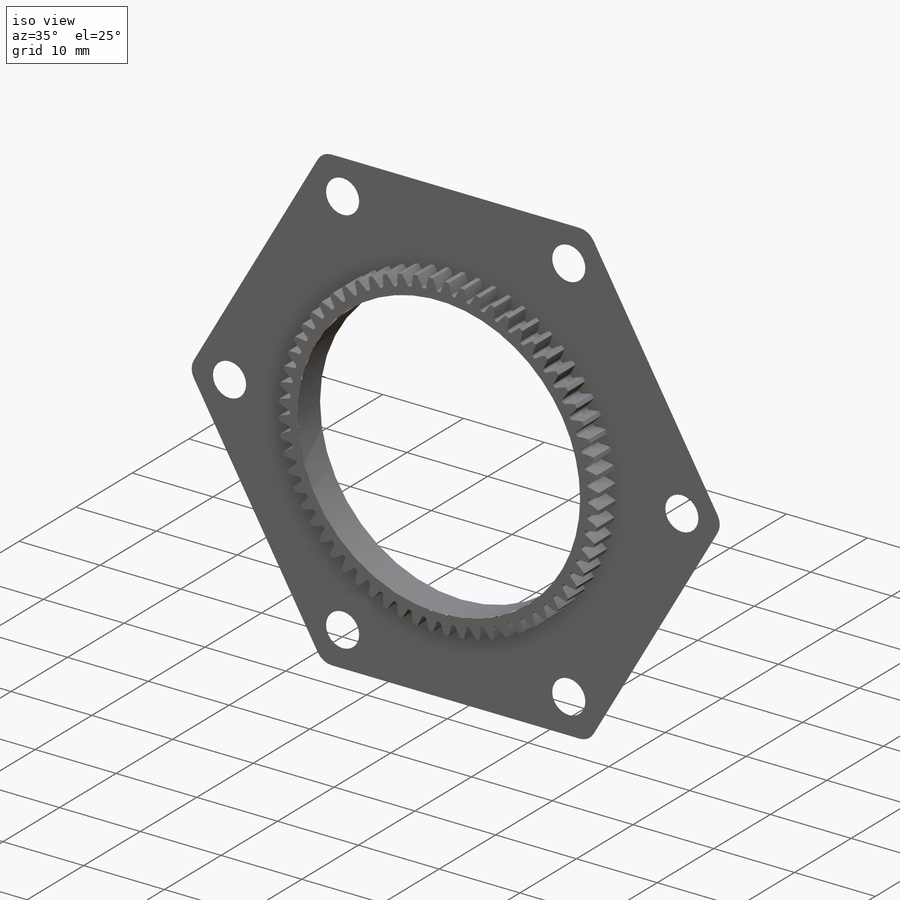
[diagram: iso view]
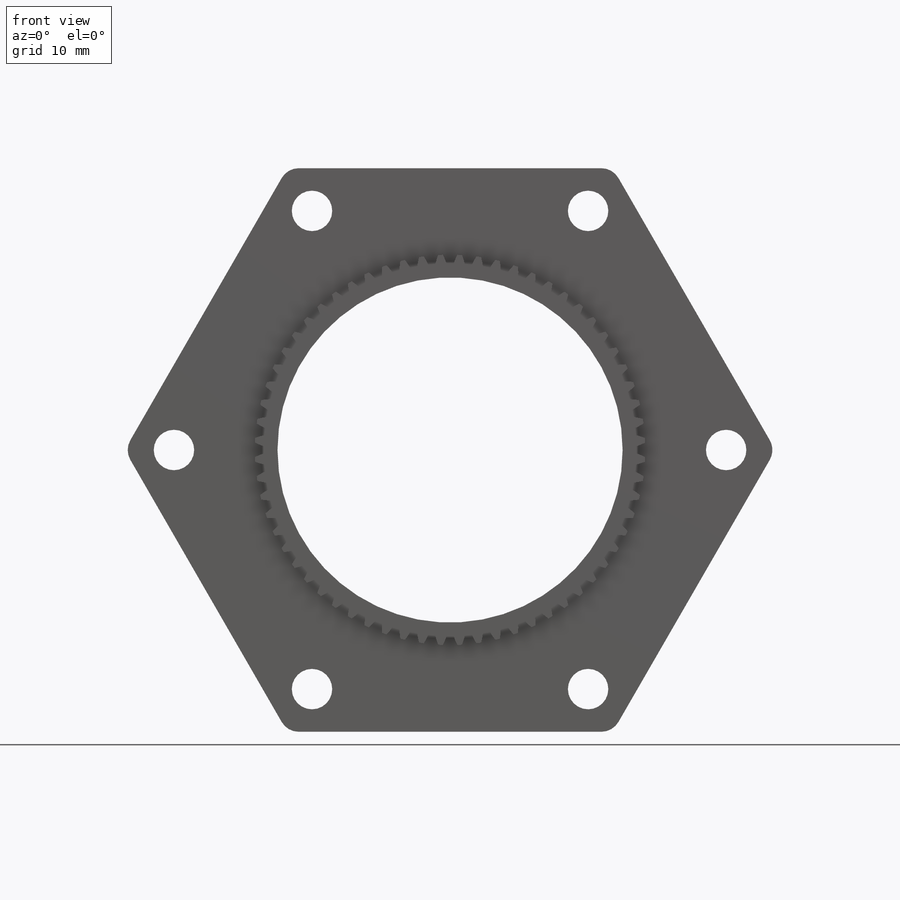
[diagram: front view]
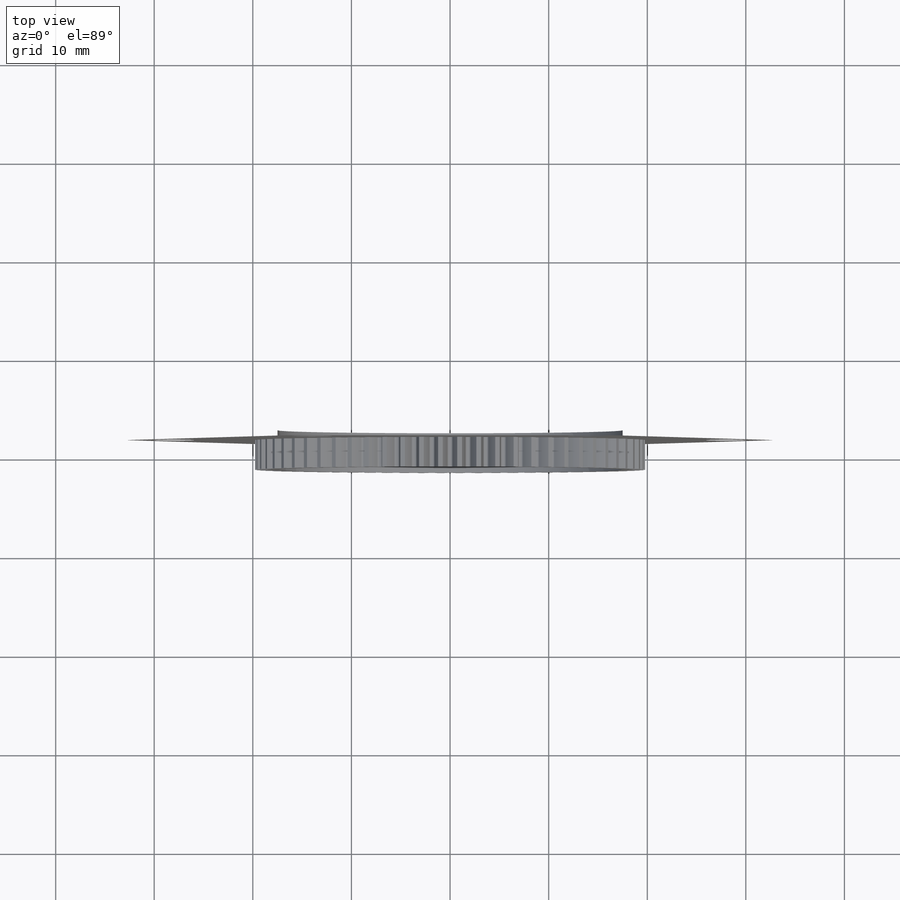
[diagram: top view]
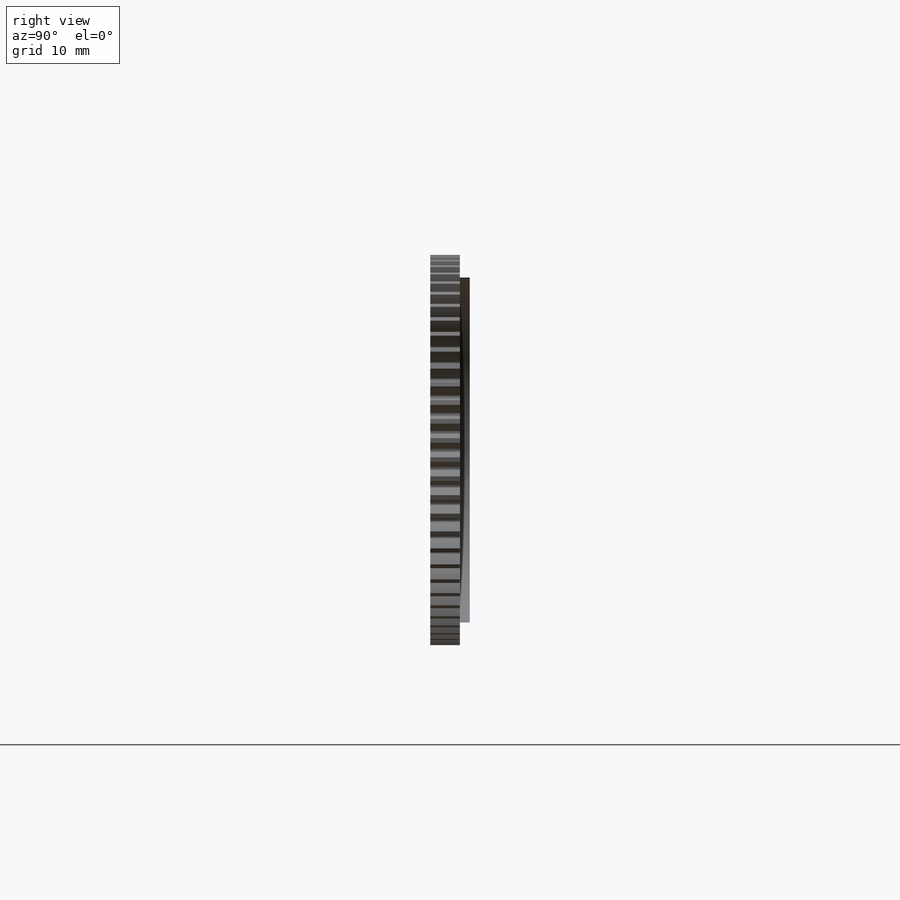
[diagram: right view]
SOLIDWORKS PART (.sldprt)
format: sldprt  version: not decoded by parser v0  size: 2,663,424 bytes
history: native  units: mm
features: sketch x6, plane x3, extrude x2, cut_extrude x2, material x1, fillet x1, hole x1 (+10 scaffold rows collapsed)
feature tree (26):
  scaffold x10  (default folders/planes/origin — collapsed)
  material  "材质 <未指定>"
  plane  "前视基准面"
  plane  "上视基准面"
  plane  "右视基准面"
  sketch  "大齿-基础草图        "  dims[D1=~39.600031mm]
  extrude  "0.6 模数    , 38.4000mm P.D."  Depth=3mm
  sketch  "齿形草图;   侧隙:             0.0000mm"  dims[D1=64.0]
  cut_extrude  "齿形除料     , 大节距 渐开线 20 度                "  Depth=10mm
  sketch  "草图3"  dims[D1=35.0mm]
  cut_extrude  "切除-拉伸2"  Depth=10mm
  sketch  "草图4"  dims[D1=35.0mm D3=2.0mm D2=33.0mm D5=28.0mm D4=6.0]
  extrude  "凸台-拉伸2"  Depth=1mm
  fillet  "圆角1"  Radius=2mm
  hole  "M2 平头机械螺钉的锥形沉头孔1"  [1 undecoded]
  sketch  "3D草图1"
  sketch  "草图5"  dims[hole-wizard template sketch: 54 standard entries collapsed; hole parameters kept: c17.通孔孔直径=1.7mm c17.通孔孔深度=1.0mm c17.近端锥形沉头孔直径=4.1mm c17.D4=~3.666174mm c17.近端锥形沉头孔角度=90.0deg]
decode coverage: 10 of 12 modeling features carry decoded parameters
note: ~ marks probable driven/reference dimensions
note: 1 parameter value undecoded
note: suppression state not decoded; provenance and decode notes live in map.json
